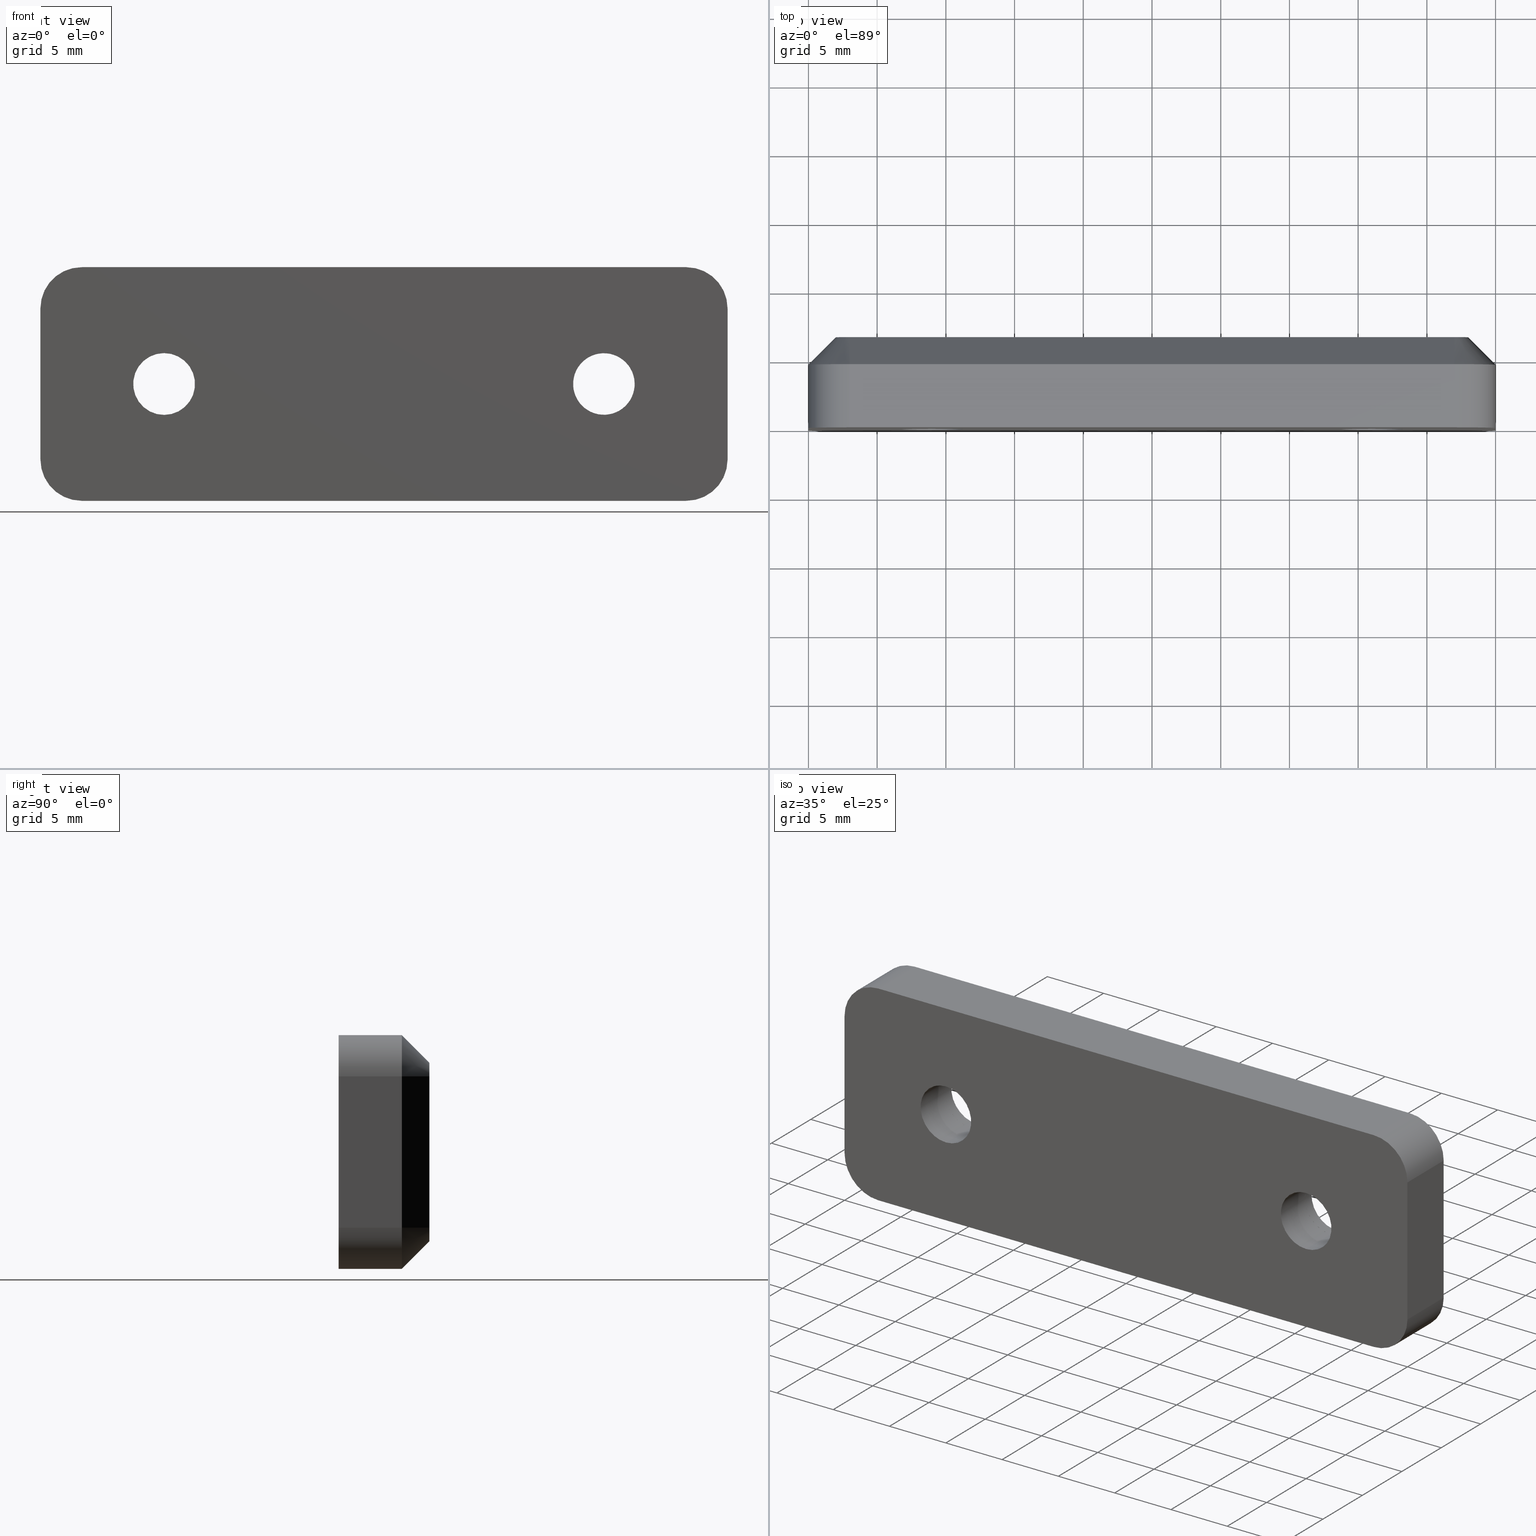
[diagram: canonical four-view strip — front | top / right | iso, engineering-drawing reading convention]
A machine part, canonical four-view strip (front | top / right | iso — engineering-drawing reading convention). The complete STEP part file that produces these views, byte-faithful:
ISO-10303-21;
HEADER;
/* Generated by software containing ST-Developer
 * from STEP Tools, Inc. (www.steptools.com) 
 */

FILE_DESCRIPTION(
/* description */ (''),
/* implementation_level */ '2;1');

FILE_NAME(
/* name */ '\\\\SYNOLOGYNAS\\web\\db2\\B-MSC32\\B-MSC32.stp',
/* time_stamp */ '2025-01-16T20:08:22+09:00',
/* author */ ('user'),
/* organization */ (''),
/* preprocessor_version */ 'ST-DEVELOPER v15.6',
/* originating_system */ 'Autodesk Inventor 2015',
/* authorisation */ '');

FILE_SCHEMA (('AUTOMOTIVE_DESIGN { 1 0 10303 214 3 1 1 }'));
ENDSEC;

DATA;
#10=MECHANICAL_DESIGN_GEOMETRIC_PRESENTATION_REPRESENTATION('',(#30,#31),
#779);
#11=ITEM_DEFINED_TRANSFORMATION($,$,#448,#503);
#12=ITEM_DEFINED_TRANSFORMATION($,$,#493,#504);
#13=ITEM_DEFINED_TRANSFORMATION($,$,#493,#505);
#14=(
REPRESENTATION_RELATIONSHIP($,$,#792,#794)
REPRESENTATION_RELATIONSHIP_WITH_TRANSFORMATION(#11)
SHAPE_REPRESENTATION_RELATIONSHIP()
);
#15=(
REPRESENTATION_RELATIONSHIP($,$,#793,#794)
REPRESENTATION_RELATIONSHIP_WITH_TRANSFORMATION(#12)
SHAPE_REPRESENTATION_RELATIONSHIP()
);
#16=(
REPRESENTATION_RELATIONSHIP($,$,#793,#794)
REPRESENTATION_RELATIONSHIP_WITH_TRANSFORMATION(#13)
SHAPE_REPRESENTATION_RELATIONSHIP()
);
#17=CONTEXT_DEPENDENT_SHAPE_REPRESENTATION(#14,#789);
#18=CONTEXT_DEPENDENT_SHAPE_REPRESENTATION(#15,#790);
#19=CONTEXT_DEPENDENT_SHAPE_REPRESENTATION(#16,#791);
#20=NEXT_ASSEMBLY_USAGE_OCCURRENCE('\X2\BAB8CCB4\X0\:1',$,$,#798,#796,$);
#21=NEXT_ASSEMBLY_USAGE_OCCURRENCE('\X2\C640C0E4\X0\:1',$,$,#798,#797,$);
#22=NEXT_ASSEMBLY_USAGE_OCCURRENCE('\X2\C640C0E4\X0\:2',$,$,#798,#797,$);
#23=DIMENSIONAL_EXPONENTS(0.,0.,0.,0.,0.,0.,0.);
#24=(
CONVERSION_BASED_UNIT('degree',#25)
NAMED_UNIT(#23)
PLANE_ANGLE_UNIT()
);
#25=PLANE_ANGLE_MEASURE_WITH_UNIT(PLANE_ANGLE_MEASURE(0.01745329252),#782);
#26=SHAPE_REPRESENTATION_RELATIONSHIP('SRR','None',#792,#28);
#27=SHAPE_REPRESENTATION_RELATIONSHIP('SRR','None',#793,#29);
#28=ADVANCED_BREP_SHAPE_REPRESENTATION($,(#32),#776);
#29=ADVANCED_BREP_SHAPE_REPRESENTATION($,(#33),#777);
#30=STYLED_ITEM('',(#811),#32);
#31=STYLED_ITEM('',(#812),#33);
#32=MANIFOLD_SOLID_BREP('\X2\C194B9ACB4DC\X0\1',#446);
#33=MANIFOLD_SOLID_BREP('\X2\C194B9ACB4DC\X0\1',#447);
#34=CONICAL_SURFACE('',#484,0.999999999999998,0.785398163397447);
#35=CONICAL_SURFACE('',#485,0.999999999999998,0.785398163397447);
#36=CONICAL_SURFACE('',#488,0.999999999999998,0.785398163397447);
#37=CONICAL_SURFACE('',#489,0.999999999999998,0.785398163397447);
#38=CYLINDRICAL_SURFACE('',#463,5.);
#39=CYLINDRICAL_SURFACE('',#465,5.);
#40=CYLINDRICAL_SURFACE('',#467,2.25);
#41=CYLINDRICAL_SURFACE('',#469,2.25);
#42=CYLINDRICAL_SURFACE('',#475,3.);
#43=CYLINDRICAL_SURFACE('',#477,3.);
#44=CYLINDRICAL_SURFACE('',#479,3.);
#45=CYLINDRICAL_SURFACE('',#481,3.);
#46=CYLINDRICAL_SURFACE('',#494,2.25);
#47=CYLINDRICAL_SURFACE('',#497,5.);
#48=FACE_BOUND('',#91,.T.);
#49=FACE_BOUND('',#92,.T.);
#50=FACE_BOUND('',#94,.T.);
#51=FACE_BOUND('',#95,.T.);
#52=FACE_BOUND('',#97,.T.);
#53=FACE_BOUND('',#99,.T.);
#54=FACE_BOUND('',#101,.T.);
#55=FACE_BOUND('',#103,.T.);
#56=FACE_BOUND('',#121,.T.);
#57=FACE_BOUND('',#123,.T.);
#58=FACE_BOUND('',#125,.T.);
#59=FACE_BOUND('',#127,.T.);
#60=FACE_BOUND('',#129,.T.);
#61=FACE_BOUND('',#131,.T.);
#62=FACE_OUTER_BOUND('',#90,.T.);
#63=FACE_OUTER_BOUND('',#93,.T.);
#64=FACE_OUTER_BOUND('',#96,.T.);
#65=FACE_OUTER_BOUND('',#98,.T.);
#66=FACE_OUTER_BOUND('',#100,.T.);
#67=FACE_OUTER_BOUND('',#102,.T.);
#68=FACE_OUTER_BOUND('',#104,.T.);
#69=FACE_OUTER_BOUND('',#105,.T.);
#70=FACE_OUTER_BOUND('',#106,.T.);
#71=FACE_OUTER_BOUND('',#107,.T.);
#72=FACE_OUTER_BOUND('',#108,.T.);
#73=FACE_OUTER_BOUND('',#109,.T.);
#74=FACE_OUTER_BOUND('',#110,.T.);
#75=FACE_OUTER_BOUND('',#111,.T.);
#76=FACE_OUTER_BOUND('',#112,.T.);
#77=FACE_OUTER_BOUND('',#113,.T.);
#78=FACE_OUTER_BOUND('',#114,.T.);
#79=FACE_OUTER_BOUND('',#115,.T.);
#80=FACE_OUTER_BOUND('',#116,.T.);
#81=FACE_OUTER_BOUND('',#117,.T.);
#82=FACE_OUTER_BOUND('',#118,.T.);
#83=FACE_OUTER_BOUND('',#119,.T.);
#84=FACE_OUTER_BOUND('',#120,.T.);
#85=FACE_OUTER_BOUND('',#122,.T.);
#86=FACE_OUTER_BOUND('',#124,.T.);
#87=FACE_OUTER_BOUND('',#126,.T.);
#88=FACE_OUTER_BOUND('',#128,.T.);
#89=FACE_OUTER_BOUND('',#130,.T.);
#90=EDGE_LOOP('',(#300,#301,#302,#303,#304,#305,#306,#307));
#91=EDGE_LOOP('',(#308));
#92=EDGE_LOOP('',(#309));
#93=EDGE_LOOP('',(#310,#311,#312,#313,#314,#315,#316,#317));
#94=EDGE_LOOP('',(#318));
#95=EDGE_LOOP('',(#319));
#96=EDGE_LOOP('',(#320));
#97=EDGE_LOOP('',(#321));
#98=EDGE_LOOP('',(#322));
#99=EDGE_LOOP('',(#323));
#100=EDGE_LOOP('',(#324));
#101=EDGE_LOOP('',(#325));
#102=EDGE_LOOP('',(#326));
#103=EDGE_LOOP('',(#327));
#104=EDGE_LOOP('',(#328,#329,#330,#331));
#105=EDGE_LOOP('',(#332,#333,#334,#335));
#106=EDGE_LOOP('',(#336,#337,#338,#339));
#107=EDGE_LOOP('',(#340,#341,#342,#343));
#108=EDGE_LOOP('',(#344,#345,#346,#347));
#109=EDGE_LOOP('',(#348,#349,#350,#351));
#110=EDGE_LOOP('',(#352,#353,#354,#355));
#111=EDGE_LOOP('',(#356,#357,#358,#359));
#112=EDGE_LOOP('',(#360,#361,#362,#363));
#113=EDGE_LOOP('',(#364,#365,#366,#367));
#114=EDGE_LOOP('',(#368,#369,#370,#371));
#115=EDGE_LOOP('',(#372,#373,#374,#375));
#116=EDGE_LOOP('',(#376,#377,#378,#379));
#117=EDGE_LOOP('',(#380,#381,#382,#383));
#118=EDGE_LOOP('',(#384,#385,#386,#387));
#119=EDGE_LOOP('',(#388,#389,#390,#391));
#120=EDGE_LOOP('',(#392));
#121=EDGE_LOOP('',(#393));
#122=EDGE_LOOP('',(#394));
#123=EDGE_LOOP('',(#395));
#124=EDGE_LOOP('',(#396));
#125=EDGE_LOOP('',(#397));
#126=EDGE_LOOP('',(#398));
#127=EDGE_LOOP('',(#399));
#128=EDGE_LOOP('',(#400));
#129=EDGE_LOOP('',(#401));
#130=EDGE_LOOP('',(#402));
#131=EDGE_LOOP('',(#403));
#132=CIRCLE('',#450,3.);
#133=CIRCLE('',#451,3.);
#134=CIRCLE('',#452,3.);
#135=CIRCLE('',#453,3.);
#136=CIRCLE('',#454,2.25);
#137=CIRCLE('',#455,2.25);
#138=CIRCLE('',#457,0.999999999999998);
#139=CIRCLE('',#458,0.999999999999998);
#140=CIRCLE('',#459,0.999999999999998);
#141=CIRCLE('',#460,0.999999999999998);
#142=CIRCLE('',#461,5.);
#143=CIRCLE('',#462,5.);
#144=CIRCLE('',#464,5.);
#145=CIRCLE('',#466,5.);
#146=CIRCLE('',#468,2.25);
#147=CIRCLE('',#470,2.25);
#148=CIRCLE('',#476,3.);
#149=CIRCLE('',#478,3.);
#150=CIRCLE('',#480,3.);
#151=CIRCLE('',#482,3.);
#152=CIRCLE('',#495,2.25);
#153=CIRCLE('',#496,2.25);
#154=CIRCLE('',#498,5.);
#155=CIRCLE('',#499,5.);
#156=LINE('',#654,#184);
#157=LINE('',#658,#185);
#158=LINE('',#662,#186);
#159=LINE('',#666,#187);
#160=LINE('',#677,#188);
#161=LINE('',#681,#189);
#162=LINE('',#685,#190);
#163=LINE('',#688,#191);
#164=LINE('',#707,#192);
#165=LINE('',#709,#193);
#166=LINE('',#710,#194);
#167=LINE('',#713,#195);
#168=LINE('',#715,#196);
#169=LINE('',#716,#197);
#170=LINE('',#719,#198);
#171=LINE('',#721,#199);
#172=LINE('',#722,#200);
#173=LINE('',#725,#201);
#174=LINE('',#727,#202);
#175=LINE('',#728,#203);
#176=LINE('',#738,#204);
#177=LINE('',#739,#205);
#178=LINE('',#741,#206);
#179=LINE('',#743,#207);
#180=LINE('',#745,#208);
#181=LINE('',#747,#209);
#182=LINE('',#749,#210);
#183=LINE('',#751,#211);
#184=VECTOR('',#510,44.);
#185=VECTOR('',#513,11.);
#186=VECTOR('',#516,44.);
#187=VECTOR('',#519,11.);
#188=VECTOR('',#530,44.);
#189=VECTOR('',#533,11.);
#190=VECTOR('',#536,44.);
#191=VECTOR('',#539,11.);
#192=VECTOR('',#562,4.59999999999999);
#193=VECTOR('',#563,11.);
#194=VECTOR('',#564,4.59999999999999);
#195=VECTOR('',#567,4.59999999999999);
#196=VECTOR('',#568,44.);
#197=VECTOR('',#569,4.59999999999999);
#198=VECTOR('',#572,4.59999999999999);
#199=VECTOR('',#573,11.);
#200=VECTOR('',#574,4.59999999999999);
#201=VECTOR('',#577,4.59999999999999);
#202=VECTOR('',#578,44.);
#203=VECTOR('',#579,4.59999999999999);
#204=VECTOR('',#598,2.8284271247462);
#205=VECTOR('',#599,2.8284271247462);
#206=VECTOR('',#602,2.8284271247462);
#207=VECTOR('',#605,2.8284271247462);
#208=VECTOR('',#608,2.8284271247462);
#209=VECTOR('',#611,2.8284271247462);
#210=VECTOR('',#614,2.8284271247462);
#211=VECTOR('',#617,2.8284271247462);
#212=VERTEX_POINT('',#652);
#213=VERTEX_POINT('',#653);
#214=VERTEX_POINT('',#655);
#215=VERTEX_POINT('',#657);
#216=VERTEX_POINT('',#659);
#217=VERTEX_POINT('',#661);
#218=VERTEX_POINT('',#663);
#219=VERTEX_POINT('',#665);
#220=VERTEX_POINT('',#668);
#221=VERTEX_POINT('',#670);
#222=VERTEX_POINT('',#673);
#223=VERTEX_POINT('',#674);
#224=VERTEX_POINT('',#676);
#225=VERTEX_POINT('',#678);
#226=VERTEX_POINT('',#680);
#227=VERTEX_POINT('',#682);
#228=VERTEX_POINT('',#684);
#229=VERTEX_POINT('',#686);
#230=VERTEX_POINT('',#689);
#231=VERTEX_POINT('',#691);
#232=VERTEX_POINT('',#694);
#233=VERTEX_POINT('',#697);
#234=VERTEX_POINT('',#700);
#235=VERTEX_POINT('',#703);
#236=VERTEX_POINT('',#706);
#237=VERTEX_POINT('',#708);
#238=VERTEX_POINT('',#712);
#239=VERTEX_POINT('',#714);
#240=VERTEX_POINT('',#718);
#241=VERTEX_POINT('',#720);
#242=VERTEX_POINT('',#724);
#243=VERTEX_POINT('',#726);
#244=VERTEX_POINT('',#757);
#245=VERTEX_POINT('',#759);
#246=VERTEX_POINT('',#762);
#247=VERTEX_POINT('',#764);
#248=EDGE_CURVE('',#212,#213,#156,.T.);
#249=EDGE_CURVE('',#212,#214,#132,.T.);
#250=EDGE_CURVE('',#215,#214,#157,.T.);
#251=EDGE_CURVE('',#215,#216,#133,.T.);
#252=EDGE_CURVE('',#217,#216,#158,.T.);
#253=EDGE_CURVE('',#217,#218,#134,.T.);
#254=EDGE_CURVE('',#219,#218,#159,.T.);
#255=EDGE_CURVE('',#219,#213,#135,.T.);
#256=EDGE_CURVE('',#220,#220,#136,.T.);
#257=EDGE_CURVE('',#221,#221,#137,.T.);
#258=EDGE_CURVE('',#222,#223,#138,.T.);
#259=EDGE_CURVE('',#223,#224,#160,.T.);
#260=EDGE_CURVE('',#224,#225,#139,.T.);
#261=EDGE_CURVE('',#225,#226,#161,.T.);
#262=EDGE_CURVE('',#226,#227,#140,.T.);
#263=EDGE_CURVE('',#227,#228,#162,.T.);
#264=EDGE_CURVE('',#228,#229,#141,.T.);
#265=EDGE_CURVE('',#229,#222,#163,.T.);
#266=EDGE_CURVE('',#230,#230,#142,.T.);
#267=EDGE_CURVE('',#231,#231,#143,.T.);
#268=EDGE_CURVE('',#232,#232,#144,.T.);
#269=EDGE_CURVE('',#233,#233,#145,.T.);
#270=EDGE_CURVE('',#234,#234,#146,.T.);
#271=EDGE_CURVE('',#235,#235,#147,.T.);
#272=EDGE_CURVE('',#218,#236,#164,.T.);
#273=EDGE_CURVE('',#236,#237,#165,.T.);
#274=EDGE_CURVE('',#237,#219,#166,.T.);
#275=EDGE_CURVE('',#216,#238,#167,.T.);
#276=EDGE_CURVE('',#238,#239,#168,.T.);
#277=EDGE_CURVE('',#239,#217,#169,.T.);
#278=EDGE_CURVE('',#214,#240,#170,.T.);
#279=EDGE_CURVE('',#240,#241,#171,.T.);
#280=EDGE_CURVE('',#241,#215,#172,.T.);
#281=EDGE_CURVE('',#213,#242,#173,.T.);
#282=EDGE_CURVE('',#242,#243,#174,.T.);
#283=EDGE_CURVE('',#243,#212,#175,.T.);
#284=EDGE_CURVE('',#243,#240,#148,.T.);
#285=EDGE_CURVE('',#241,#238,#149,.T.);
#286=EDGE_CURVE('',#239,#236,#150,.T.);
#287=EDGE_CURVE('',#237,#242,#151,.T.);
#288=EDGE_CURVE('',#243,#227,#176,.T.);
#289=EDGE_CURVE('',#228,#242,#177,.T.);
#290=EDGE_CURVE('',#229,#237,#178,.T.);
#291=EDGE_CURVE('',#240,#226,#179,.T.);
#292=EDGE_CURVE('',#222,#236,#180,.T.);
#293=EDGE_CURVE('',#241,#225,#181,.T.);
#294=EDGE_CURVE('',#223,#239,#182,.T.);
#295=EDGE_CURVE('',#238,#224,#183,.T.);
#296=EDGE_CURVE('',#244,#244,#152,.T.);
#297=EDGE_CURVE('',#245,#245,#153,.T.);
#298=EDGE_CURVE('',#246,#246,#154,.T.);
#299=EDGE_CURVE('',#247,#247,#155,.T.);
#300=ORIENTED_EDGE('',*,*,#248,.F.);
#301=ORIENTED_EDGE('',*,*,#249,.T.);
#302=ORIENTED_EDGE('',*,*,#250,.F.);
#303=ORIENTED_EDGE('',*,*,#251,.T.);
#304=ORIENTED_EDGE('',*,*,#252,.F.);
#305=ORIENTED_EDGE('',*,*,#253,.T.);
#306=ORIENTED_EDGE('',*,*,#254,.F.);
#307=ORIENTED_EDGE('',*,*,#255,.T.);
#308=ORIENTED_EDGE('',*,*,#256,.T.);
#309=ORIENTED_EDGE('',*,*,#257,.T.);
#310=ORIENTED_EDGE('',*,*,#258,.T.);
#311=ORIENTED_EDGE('',*,*,#259,.T.);
#312=ORIENTED_EDGE('',*,*,#260,.T.);
#313=ORIENTED_EDGE('',*,*,#261,.T.);
#314=ORIENTED_EDGE('',*,*,#262,.T.);
#315=ORIENTED_EDGE('',*,*,#263,.T.);
#316=ORIENTED_EDGE('',*,*,#264,.T.);
#317=ORIENTED_EDGE('',*,*,#265,.T.);
#318=ORIENTED_EDGE('',*,*,#266,.F.);
#319=ORIENTED_EDGE('',*,*,#267,.F.);
#320=ORIENTED_EDGE('',*,*,#267,.T.);
#321=ORIENTED_EDGE('',*,*,#268,.F.);
#322=ORIENTED_EDGE('',*,*,#266,.T.);
#323=ORIENTED_EDGE('',*,*,#269,.F.);
#324=ORIENTED_EDGE('',*,*,#257,.F.);
#325=ORIENTED_EDGE('',*,*,#270,.T.);
#326=ORIENTED_EDGE('',*,*,#256,.F.);
#327=ORIENTED_EDGE('',*,*,#271,.T.);
#328=ORIENTED_EDGE('',*,*,#272,.T.);
#329=ORIENTED_EDGE('',*,*,#273,.T.);
#330=ORIENTED_EDGE('',*,*,#274,.T.);
#331=ORIENTED_EDGE('',*,*,#254,.T.);
#332=ORIENTED_EDGE('',*,*,#275,.T.);
#333=ORIENTED_EDGE('',*,*,#276,.T.);
#334=ORIENTED_EDGE('',*,*,#277,.T.);
#335=ORIENTED_EDGE('',*,*,#252,.T.);
#336=ORIENTED_EDGE('',*,*,#278,.T.);
#337=ORIENTED_EDGE('',*,*,#279,.T.);
#338=ORIENTED_EDGE('',*,*,#280,.T.);
#339=ORIENTED_EDGE('',*,*,#250,.T.);
#340=ORIENTED_EDGE('',*,*,#281,.T.);
#341=ORIENTED_EDGE('',*,*,#282,.T.);
#342=ORIENTED_EDGE('',*,*,#283,.T.);
#343=ORIENTED_EDGE('',*,*,#248,.T.);
#344=ORIENTED_EDGE('',*,*,#283,.F.);
#345=ORIENTED_EDGE('',*,*,#284,.T.);
#346=ORIENTED_EDGE('',*,*,#278,.F.);
#347=ORIENTED_EDGE('',*,*,#249,.F.);
#348=ORIENTED_EDGE('',*,*,#280,.F.);
#349=ORIENTED_EDGE('',*,*,#285,.T.);
#350=ORIENTED_EDGE('',*,*,#275,.F.);
#351=ORIENTED_EDGE('',*,*,#251,.F.);
#352=ORIENTED_EDGE('',*,*,#277,.F.);
#353=ORIENTED_EDGE('',*,*,#286,.T.);
#354=ORIENTED_EDGE('',*,*,#272,.F.);
#355=ORIENTED_EDGE('',*,*,#253,.F.);
#356=ORIENTED_EDGE('',*,*,#274,.F.);
#357=ORIENTED_EDGE('',*,*,#287,.T.);
#358=ORIENTED_EDGE('',*,*,#281,.F.);
#359=ORIENTED_EDGE('',*,*,#255,.F.);
#360=ORIENTED_EDGE('',*,*,#288,.F.);
#361=ORIENTED_EDGE('',*,*,#282,.F.);
#362=ORIENTED_EDGE('',*,*,#289,.F.);
#363=ORIENTED_EDGE('',*,*,#263,.F.);
#364=ORIENTED_EDGE('',*,*,#289,.T.);
#365=ORIENTED_EDGE('',*,*,#287,.F.);
#366=ORIENTED_EDGE('',*,*,#290,.F.);
#367=ORIENTED_EDGE('',*,*,#264,.F.);
#368=ORIENTED_EDGE('',*,*,#288,.T.);
#369=ORIENTED_EDGE('',*,*,#262,.F.);
#370=ORIENTED_EDGE('',*,*,#291,.F.);
#371=ORIENTED_EDGE('',*,*,#284,.F.);
#372=ORIENTED_EDGE('',*,*,#290,.T.);
#373=ORIENTED_EDGE('',*,*,#273,.F.);
#374=ORIENTED_EDGE('',*,*,#292,.F.);
#375=ORIENTED_EDGE('',*,*,#265,.F.);
#376=ORIENTED_EDGE('',*,*,#291,.T.);
#377=ORIENTED_EDGE('',*,*,#261,.F.);
#378=ORIENTED_EDGE('',*,*,#293,.F.);
#379=ORIENTED_EDGE('',*,*,#279,.F.);
#380=ORIENTED_EDGE('',*,*,#292,.T.);
#381=ORIENTED_EDGE('',*,*,#286,.F.);
#382=ORIENTED_EDGE('',*,*,#294,.F.);
#383=ORIENTED_EDGE('',*,*,#258,.F.);
#384=ORIENTED_EDGE('',*,*,#293,.T.);
#385=ORIENTED_EDGE('',*,*,#260,.F.);
#386=ORIENTED_EDGE('',*,*,#295,.F.);
#387=ORIENTED_EDGE('',*,*,#285,.F.);
#388=ORIENTED_EDGE('',*,*,#294,.T.);
#389=ORIENTED_EDGE('',*,*,#276,.F.);
#390=ORIENTED_EDGE('',*,*,#295,.T.);
#391=ORIENTED_EDGE('',*,*,#259,.F.);
#392=ORIENTED_EDGE('',*,*,#269,.T.);
#393=ORIENTED_EDGE('',*,*,#270,.F.);
#394=ORIENTED_EDGE('',*,*,#268,.T.);
#395=ORIENTED_EDGE('',*,*,#271,.F.);
#396=ORIENTED_EDGE('',*,*,#296,.F.);
#397=ORIENTED_EDGE('',*,*,#297,.T.);
#398=ORIENTED_EDGE('',*,*,#298,.F.);
#399=ORIENTED_EDGE('',*,*,#299,.T.);
#400=ORIENTED_EDGE('',*,*,#298,.T.);
#401=ORIENTED_EDGE('',*,*,#297,.F.);
#402=ORIENTED_EDGE('',*,*,#299,.F.);
#403=ORIENTED_EDGE('',*,*,#296,.T.);
#404=PLANE('',#449);
#405=PLANE('',#456);
#406=PLANE('',#471);
#407=PLANE('',#472);
#408=PLANE('',#473);
#409=PLANE('',#474);
#410=PLANE('',#483);
#411=PLANE('',#486);
#412=PLANE('',#487);
#413=PLANE('',#490);
#414=PLANE('',#491);
#415=PLANE('',#492);
#416=PLANE('',#500);
#417=PLANE('',#501);
#418=ADVANCED_FACE('',(#62,#48,#49),#404,.T.);
#419=ADVANCED_FACE('',(#63,#50,#51),#405,.T.);
#420=ADVANCED_FACE('',(#64,#52),#38,.F.);
#421=ADVANCED_FACE('',(#65,#53),#39,.F.);
#422=ADVANCED_FACE('',(#66,#54),#40,.F.);
#423=ADVANCED_FACE('',(#67,#55),#41,.F.);
#424=ADVANCED_FACE('',(#68),#406,.F.);
#425=ADVANCED_FACE('',(#69),#407,.F.);
#426=ADVANCED_FACE('',(#70),#408,.F.);
#427=ADVANCED_FACE('',(#71),#409,.F.);
#428=ADVANCED_FACE('',(#72),#42,.T.);
#429=ADVANCED_FACE('',(#73),#43,.T.);
#430=ADVANCED_FACE('',(#74),#44,.T.);
#431=ADVANCED_FACE('',(#75),#45,.T.);
#432=ADVANCED_FACE('',(#76),#410,.T.);
#433=ADVANCED_FACE('',(#77),#34,.T.);
#434=ADVANCED_FACE('',(#78),#35,.T.);
#435=ADVANCED_FACE('',(#79),#411,.T.);
#436=ADVANCED_FACE('',(#80),#412,.T.);
#437=ADVANCED_FACE('',(#81),#36,.T.);
#438=ADVANCED_FACE('',(#82),#37,.T.);
#439=ADVANCED_FACE('',(#83),#413,.T.);
#440=ADVANCED_FACE('',(#84,#56),#414,.T.);
#441=ADVANCED_FACE('',(#85,#57),#415,.T.);
#442=ADVANCED_FACE('',(#86,#58),#46,.F.);
#443=ADVANCED_FACE('',(#87,#59),#47,.T.);
#444=ADVANCED_FACE('',(#88,#60),#416,.T.);
#445=ADVANCED_FACE('',(#89,#61),#417,.F.);
#446=CLOSED_SHELL('',(#418,#419,#420,#421,#422,#423,#424,#425,#426,#427,
#428,#429,#430,#431,#432,#433,#434,#435,#436,#437,#438,#439,#440,#441));
#447=CLOSED_SHELL('',(#442,#443,#444,#445));
#448=AXIS2_PLACEMENT_3D('placement',#650,#506,#507);
#449=AXIS2_PLACEMENT_3D('',#651,#508,#509);
#450=AXIS2_PLACEMENT_3D('',#656,#511,#512);
#451=AXIS2_PLACEMENT_3D('',#660,#514,#515);
#452=AXIS2_PLACEMENT_3D('',#664,#517,#518);
#453=AXIS2_PLACEMENT_3D('',#667,#520,#521);
#454=AXIS2_PLACEMENT_3D('',#669,#522,#523);
#455=AXIS2_PLACEMENT_3D('',#671,#524,#525);
#456=AXIS2_PLACEMENT_3D('',#672,#526,#527);
#457=AXIS2_PLACEMENT_3D('',#675,#528,#529);
#458=AXIS2_PLACEMENT_3D('',#679,#531,#532);
#459=AXIS2_PLACEMENT_3D('',#683,#534,#535);
#460=AXIS2_PLACEMENT_3D('',#687,#537,#538);
#461=AXIS2_PLACEMENT_3D('',#690,#540,#541);
#462=AXIS2_PLACEMENT_3D('',#692,#542,#543);
#463=AXIS2_PLACEMENT_3D('',#693,#544,#545);
#464=AXIS2_PLACEMENT_3D('',#695,#546,#547);
#465=AXIS2_PLACEMENT_3D('',#696,#548,#549);
#466=AXIS2_PLACEMENT_3D('',#698,#550,#551);
#467=AXIS2_PLACEMENT_3D('',#699,#552,#553);
#468=AXIS2_PLACEMENT_3D('',#701,#554,#555);
#469=AXIS2_PLACEMENT_3D('',#702,#556,#557);
#470=AXIS2_PLACEMENT_3D('',#704,#558,#559);
#471=AXIS2_PLACEMENT_3D('',#705,#560,#561);
#472=AXIS2_PLACEMENT_3D('',#711,#565,#566);
#473=AXIS2_PLACEMENT_3D('',#717,#570,#571);
#474=AXIS2_PLACEMENT_3D('',#723,#575,#576);
#475=AXIS2_PLACEMENT_3D('',#729,#580,#581);
#476=AXIS2_PLACEMENT_3D('',#730,#582,#583);
#477=AXIS2_PLACEMENT_3D('',#731,#584,#585);
#478=AXIS2_PLACEMENT_3D('',#732,#586,#587);
#479=AXIS2_PLACEMENT_3D('',#733,#588,#589);
#480=AXIS2_PLACEMENT_3D('',#734,#590,#591);
#481=AXIS2_PLACEMENT_3D('',#735,#592,#593);
#482=AXIS2_PLACEMENT_3D('',#736,#594,#595);
#483=AXIS2_PLACEMENT_3D('',#737,#596,#597);
#484=AXIS2_PLACEMENT_3D('',#740,#600,#601);
#485=AXIS2_PLACEMENT_3D('',#742,#603,#604);
#486=AXIS2_PLACEMENT_3D('',#744,#606,#607);
#487=AXIS2_PLACEMENT_3D('',#746,#609,#610);
#488=AXIS2_PLACEMENT_3D('',#748,#612,#613);
#489=AXIS2_PLACEMENT_3D('',#750,#615,#616);
#490=AXIS2_PLACEMENT_3D('',#752,#618,#619);
#491=AXIS2_PLACEMENT_3D('',#753,#620,#621);
#492=AXIS2_PLACEMENT_3D('',#754,#622,#623);
#493=AXIS2_PLACEMENT_3D('placement',#755,#624,#625);
#494=AXIS2_PLACEMENT_3D('',#756,#626,#627);
#495=AXIS2_PLACEMENT_3D('',#758,#628,#629);
#496=AXIS2_PLACEMENT_3D('',#760,#630,#631);
#497=AXIS2_PLACEMENT_3D('',#761,#632,#633);
#498=AXIS2_PLACEMENT_3D('',#763,#634,#635);
#499=AXIS2_PLACEMENT_3D('',#765,#636,#637);
#500=AXIS2_PLACEMENT_3D('',#766,#638,#639);
#501=AXIS2_PLACEMENT_3D('',#767,#640,#641);
#502=AXIS2_PLACEMENT_3D('placement',#768,#642,#643);
#503=AXIS2_PLACEMENT_3D('',#769,#644,#645);
#504=AXIS2_PLACEMENT_3D('',#770,#646,#647);
#505=AXIS2_PLACEMENT_3D('',#771,#648,#649);
#506=DIRECTION('axis',(0.,0.,1.));
#507=DIRECTION('refdir',(1.,0.,0.));
#508=DIRECTION('center_axis',(0.,-1.,0.));
#509=DIRECTION('ref_axis',(0.,0.,-1.));
#510=DIRECTION('',(1.,0.,0.));
#511=DIRECTION('center_axis',(0.,-1.,0.));
#512=DIRECTION('ref_axis',(0.,0.,1.));
#513=DIRECTION('',(2.04085114820801E-16,0.,1.));
#514=DIRECTION('center_axis',(0.,-1.,0.));
#515=DIRECTION('ref_axis',(1.15648231731787E-15,0.,1.));
#516=DIRECTION('',(-1.,0.,0.));
#517=DIRECTION('center_axis',(0.,-1.,0.));
#518=DIRECTION('ref_axis',(-1.15648231731787E-15,0.,1.));
#519=DIRECTION('',(-4.08170229641602E-16,0.,-1.));
#520=DIRECTION('center_axis',(0.,-1.,0.));
#521=DIRECTION('ref_axis',(-1.15648231731787E-15,0.,1.));
#522=DIRECTION('center_axis',(0.,1.,0.));
#523=DIRECTION('ref_axis',(0.,0.,1.));
#524=DIRECTION('center_axis',(0.,1.,0.));
#525=DIRECTION('ref_axis',(0.,0.,1.));
#526=DIRECTION('center_axis',(0.,1.,0.));
#527=DIRECTION('ref_axis',(0.,0.,1.));
#528=DIRECTION('center_axis',(0.,1.,0.));
#529=DIRECTION('ref_axis',(0.,0.,1.));
#530=DIRECTION('',(-1.,0.,0.));
#531=DIRECTION('center_axis',(0.,1.,0.));
#532=DIRECTION('ref_axis',(0.,0.,1.));
#533=DIRECTION('',(2.04085114820801E-16,0.,1.));
#534=DIRECTION('center_axis',(0.,1.,0.));
#535=DIRECTION('ref_axis',(0.,0.,1.));
#536=DIRECTION('',(1.,0.,0.));
#537=DIRECTION('center_axis',(0.,1.,0.));
#538=DIRECTION('ref_axis',(0.,0.,1.));
#539=DIRECTION('',(-4.08170229641602E-16,0.,-1.));
#540=DIRECTION('center_axis',(0.,1.,0.));
#541=DIRECTION('ref_axis',(0.,0.,1.));
#542=DIRECTION('center_axis',(0.,1.,0.));
#543=DIRECTION('ref_axis',(0.,0.,1.));
#544=DIRECTION('center_axis',(0.,1.,0.));
#545=DIRECTION('ref_axis',(0.,0.,1.));
#546=DIRECTION('center_axis',(0.,1.,0.));
#547=DIRECTION('ref_axis',(0.,0.,1.));
#548=DIRECTION('center_axis',(0.,1.,0.));
#549=DIRECTION('ref_axis',(0.,0.,1.));
#550=DIRECTION('center_axis',(0.,1.,0.));
#551=DIRECTION('ref_axis',(0.,0.,1.));
#552=DIRECTION('center_axis',(0.,-1.,0.));
#553=DIRECTION('ref_axis',(0.,0.,-1.));
#554=DIRECTION('center_axis',(0.,1.,0.));
#555=DIRECTION('ref_axis',(0.,0.,1.));
#556=DIRECTION('center_axis',(0.,-1.,0.));
#557=DIRECTION('ref_axis',(0.,0.,-1.));
#558=DIRECTION('center_axis',(0.,1.,0.));
#559=DIRECTION('ref_axis',(0.,0.,1.));
#560=DIRECTION('center_axis',(-1.,0.,4.08170229641602E-16));
#561=DIRECTION('ref_axis',(0.,0.,1.));
#562=DIRECTION('',(0.,1.,0.));
#563=DIRECTION('',(4.08170229641602E-16,0.,1.));
#564=DIRECTION('',(0.,-1.,0.));
#565=DIRECTION('center_axis',(0.,0.,1.));
#566=DIRECTION('ref_axis',(1.,0.,0.));
#567=DIRECTION('',(0.,1.,0.));
#568=DIRECTION('',(1.,0.,0.));
#569=DIRECTION('',(0.,-1.,0.));
#570=DIRECTION('center_axis',(1.,0.,-2.04085114820801E-16));
#571=DIRECTION('ref_axis',(0.,0.,-1.));
#572=DIRECTION('',(0.,1.,0.));
#573=DIRECTION('',(-2.04085114820801E-16,0.,-1.));
#574=DIRECTION('',(0.,-1.,0.));
#575=DIRECTION('center_axis',(0.,0.,-1.));
#576=DIRECTION('ref_axis',(-1.,0.,0.));
#577=DIRECTION('',(0.,1.,0.));
#578=DIRECTION('',(-1.,0.,0.));
#579=DIRECTION('',(0.,-1.,0.));
#580=DIRECTION('center_axis',(0.,-1.,0.));
#581=DIRECTION('ref_axis',(0.,0.,-1.));
#582=DIRECTION('center_axis',(0.,-1.,0.));
#583=DIRECTION('ref_axis',(0.,0.,1.));
#584=DIRECTION('center_axis',(0.,-1.,0.));
#585=DIRECTION('ref_axis',(0.,0.,-1.));
#586=DIRECTION('center_axis',(0.,-1.,0.));
#587=DIRECTION('ref_axis',(1.15648231731787E-15,0.,1.));
#588=DIRECTION('center_axis',(0.,-1.,0.));
#589=DIRECTION('ref_axis',(0.,0.,-1.));
#590=DIRECTION('center_axis',(0.,-1.,0.));
#591=DIRECTION('ref_axis',(-1.15648231731787E-15,0.,1.));
#592=DIRECTION('center_axis',(0.,-1.,0.));
#593=DIRECTION('ref_axis',(0.,0.,-1.));
#594=DIRECTION('center_axis',(0.,-1.,0.));
#595=DIRECTION('ref_axis',(-1.15648231731787E-15,0.,1.));
#596=DIRECTION('center_axis',(0.,0.707106781186546,0.707106781186549));
#597=DIRECTION('ref_axis',(-1.,0.,0.));
#598=DIRECTION('',(0.,0.707106781186549,-0.707106781186546));
#599=DIRECTION('',(0.,-0.707106781186549,0.707106781186546));
#600=DIRECTION('center_axis',(0.,-1.,0.));
#601=DIRECTION('ref_axis',(0.,0.,-1.));
#602=DIRECTION('',(0.707106781186546,-0.707106781186549,-3.06658683336674E-16));
#603=DIRECTION('center_axis',(0.,-1.,0.));
#604=DIRECTION('ref_axis',(0.,0.,-1.));
#605=DIRECTION('',(0.707106781186546,0.707106781186549,0.));
#606=DIRECTION('center_axis',(0.707106781186549,0.707106781186546,-2.88619937258047E-16));
#607=DIRECTION('ref_axis',(0.,0.,1.));
#608=DIRECTION('',(0.707106781186546,-0.707106781186549,-3.06658683336674E-16));
#609=DIRECTION('center_axis',(-0.707106781186549,0.707106781186546,1.44309968629024E-16));
#610=DIRECTION('ref_axis',(0.,0.,-1.));
#611=DIRECTION('',(0.707106781186546,0.707106781186549,-3.06658683336674E-16));
#612=DIRECTION('center_axis',(0.,-1.,0.));
#613=DIRECTION('ref_axis',(0.,0.,-1.));
#614=DIRECTION('',(0.,-0.707106781186549,-0.707106781186546));
#615=DIRECTION('center_axis',(0.,-1.,0.));
#616=DIRECTION('ref_axis',(0.,0.,-1.));
#617=DIRECTION('',(0.,0.707106781186549,0.707106781186546));
#618=DIRECTION('center_axis',(0.,0.707106781186546,-0.707106781186549));
#619=DIRECTION('ref_axis',(1.,0.,0.));
#620=DIRECTION('center_axis',(0.,1.,0.));
#621=DIRECTION('ref_axis',(0.,0.,1.));
#622=DIRECTION('center_axis',(0.,1.,0.));
#623=DIRECTION('ref_axis',(0.,0.,1.));
#624=DIRECTION('axis',(0.,0.,1.));
#625=DIRECTION('refdir',(1.,0.,0.));
#626=DIRECTION('center_axis',(0.,-1.,0.));
#627=DIRECTION('ref_axis',(0.,0.,-1.));
#628=DIRECTION('center_axis',(0.,1.,0.));
#629=DIRECTION('ref_axis',(0.,0.,1.));
#630=DIRECTION('center_axis',(0.,1.,0.));
#631=DIRECTION('ref_axis',(0.,0.,1.));
#632=DIRECTION('center_axis',(0.,-1.,0.));
#633=DIRECTION('ref_axis',(0.,0.,-1.));
#634=DIRECTION('center_axis',(0.,1.,0.));
#635=DIRECTION('ref_axis',(0.,0.,1.));
#636=DIRECTION('center_axis',(0.,1.,0.));
#637=DIRECTION('ref_axis',(0.,0.,1.));
#638=DIRECTION('center_axis',(0.,1.,0.));
#639=DIRECTION('ref_axis',(0.,0.,1.));
#640=DIRECTION('center_axis',(0.,1.,0.));
#641=DIRECTION('ref_axis',(0.,0.,1.));
#642=DIRECTION('axis',(0.,0.,1.));
#643=DIRECTION('refdir',(1.,0.,0.));
#644=DIRECTION('',(0.,0.,-1.));
#645=DIRECTION('',(-1.,0.,0.));
#646=DIRECTION('',(0.930312532669425,6.98394883301112E-17,0.366767762430397));
#647=DIRECTION('',(0.366767762430397,1.69417404743889E-17,-0.930312532669425));
#648=DIRECTION('',(0.962225489159744,8.28524561811291E-19,-0.272253756652303));
#649=DIRECTION('',(-0.272253756652303,-5.41195523679861E-19,-0.962225489159744));
#650=CARTESIAN_POINT('',(0.,0.,0.));
#651=CARTESIAN_POINT('Origin',(5.74236559691303,0.,-2.50182767338622));
#652=CARTESIAN_POINT('',(-22.,0.,8.5));
#653=CARTESIAN_POINT('',(22.,0.,8.5));
#654=CARTESIAN_POINT('',(-25.,0.,8.5));
#655=CARTESIAN_POINT('',(-25.,0.,5.5));
#656=CARTESIAN_POINT('Origin',(-22.,0.,5.5));
#657=CARTESIAN_POINT('',(-25.,0.,-5.5));
#658=CARTESIAN_POINT('',(-25.,0.,-8.5));
#659=CARTESIAN_POINT('',(-22.,0.,-8.5));
#660=CARTESIAN_POINT('Origin',(-22.,0.,-5.5));
#661=CARTESIAN_POINT('',(22.,0.,-8.5));
#662=CARTESIAN_POINT('',(-25.,0.,-8.5));
#663=CARTESIAN_POINT('',(25.,0.,-5.5));
#664=CARTESIAN_POINT('Origin',(22.,0.,-5.5));
#665=CARTESIAN_POINT('',(25.,0.,5.5));
#666=CARTESIAN_POINT('',(25.,0.,-8.5));
#667=CARTESIAN_POINT('Origin',(22.,0.,5.5));
#668=CARTESIAN_POINT('',(-16.,0.,2.25));
#669=CARTESIAN_POINT('Origin',(-16.,0.,0.));
#670=CARTESIAN_POINT('',(16.,0.,2.25));
#671=CARTESIAN_POINT('Origin',(16.,0.,-3.91886975727153E-15));
#672=CARTESIAN_POINT('Origin',(0.,6.6,0.));
#673=CARTESIAN_POINT('',(23.,6.6,-5.5));
#674=CARTESIAN_POINT('',(22.,6.6,-6.5));
#675=CARTESIAN_POINT('Origin',(22.,6.6,-5.5));
#676=CARTESIAN_POINT('',(-22.,6.6,-6.5));
#677=CARTESIAN_POINT('',(-22.,6.6,-6.5));
#678=CARTESIAN_POINT('',(-23.,6.6,-5.5));
#679=CARTESIAN_POINT('Origin',(-22.,6.6,-5.5));
#680=CARTESIAN_POINT('',(-23.,6.6,5.5));
#681=CARTESIAN_POINT('',(-23.,6.6,5.5));
#682=CARTESIAN_POINT('',(-22.,6.6,6.5));
#683=CARTESIAN_POINT('Origin',(-22.,6.6,5.5));
#684=CARTESIAN_POINT('',(22.,6.6,6.5));
#685=CARTESIAN_POINT('',(22.,6.6,6.5));
#686=CARTESIAN_POINT('',(23.,6.6,5.5));
#687=CARTESIAN_POINT('Origin',(22.,6.6,5.5));
#688=CARTESIAN_POINT('',(23.,6.6,-5.5));
#689=CARTESIAN_POINT('',(16.,6.6,-5.));
#690=CARTESIAN_POINT('Origin',(16.,6.6,-3.91886975727153E-15));
#691=CARTESIAN_POINT('',(-16.,6.6,-5.));
#692=CARTESIAN_POINT('Origin',(-16.,6.6,0.));
#693=CARTESIAN_POINT('Origin',(-16.,3.1,0.));
#694=CARTESIAN_POINT('',(-16.,3.1,-5.));
#695=CARTESIAN_POINT('Origin',(-16.,3.1,0.));
#696=CARTESIAN_POINT('Origin',(16.,3.1,-3.91886975727153E-15));
#697=CARTESIAN_POINT('',(16.,3.1,-5.));
#698=CARTESIAN_POINT('Origin',(16.,3.1,-3.91886975727153E-15));
#699=CARTESIAN_POINT('Origin',(16.,6.6,-3.91886975727153E-15));
#700=CARTESIAN_POINT('',(16.,3.1,2.25));
#701=CARTESIAN_POINT('Origin',(16.,3.1,-3.91886975727153E-15));
#702=CARTESIAN_POINT('Origin',(-16.,6.6,0.));
#703=CARTESIAN_POINT('',(-16.,3.1,2.25));
#704=CARTESIAN_POINT('Origin',(-16.,3.1,0.));
#705=CARTESIAN_POINT('Origin',(25.,6.6,-8.5));
#706=CARTESIAN_POINT('',(25.,4.59999999999999,-5.5));
#707=CARTESIAN_POINT('',(25.,6.6,-5.5));
#708=CARTESIAN_POINT('',(25.,4.59999999999999,5.5));
#709=CARTESIAN_POINT('',(25.,4.59999999999999,5.5));
#710=CARTESIAN_POINT('',(25.,6.6,5.5));
#711=CARTESIAN_POINT('Origin',(-25.,6.6,-8.5));
#712=CARTESIAN_POINT('',(-22.,4.59999999999999,-8.5));
#713=CARTESIAN_POINT('',(-22.,6.6,-8.5));
#714=CARTESIAN_POINT('',(22.,4.59999999999999,-8.5));
#715=CARTESIAN_POINT('',(22.,4.59999999999999,-8.5));
#716=CARTESIAN_POINT('',(22.,6.6,-8.5));
#717=CARTESIAN_POINT('Origin',(-25.,6.6,-8.5));
#718=CARTESIAN_POINT('',(-25.,4.59999999999999,5.5));
#719=CARTESIAN_POINT('',(-25.,6.6,5.5));
#720=CARTESIAN_POINT('',(-25.,4.59999999999999,-5.5));
#721=CARTESIAN_POINT('',(-25.,4.59999999999999,-5.5));
#722=CARTESIAN_POINT('',(-25.,6.6,-5.5));
#723=CARTESIAN_POINT('Origin',(-25.,6.6,8.5));
#724=CARTESIAN_POINT('',(22.,4.59999999999999,8.5));
#725=CARTESIAN_POINT('',(22.,6.6,8.5));
#726=CARTESIAN_POINT('',(-22.,4.59999999999999,8.5));
#727=CARTESIAN_POINT('',(-22.,4.59999999999999,8.5));
#728=CARTESIAN_POINT('',(-22.,6.6,8.5));
#729=CARTESIAN_POINT('Origin',(-22.,6.6,5.5));
#730=CARTESIAN_POINT('Origin',(-22.,4.59999999999999,5.5));
#731=CARTESIAN_POINT('Origin',(-22.,6.6,-5.5));
#732=CARTESIAN_POINT('Origin',(-22.,4.59999999999999,-5.5));
#733=CARTESIAN_POINT('Origin',(22.,6.6,-5.5));
#734=CARTESIAN_POINT('Origin',(22.,4.59999999999999,-5.5));
#735=CARTESIAN_POINT('Origin',(22.,6.6,5.5));
#736=CARTESIAN_POINT('Origin',(22.,4.59999999999999,5.5));
#737=CARTESIAN_POINT('Origin',(0.,6.6,6.5));
#738=CARTESIAN_POINT('',(-22.,4.59999999999999,8.5));
#739=CARTESIAN_POINT('',(22.,6.6,6.5));
#740=CARTESIAN_POINT('Origin',(22.,6.6,5.5));
#741=CARTESIAN_POINT('',(23.,6.6,5.5));
#742=CARTESIAN_POINT('Origin',(-22.,6.6,5.5));
#743=CARTESIAN_POINT('',(-25.,4.59999999999999,5.5));
#744=CARTESIAN_POINT('Origin',(23.,6.6,-9.38791528175684E-15));
#745=CARTESIAN_POINT('',(23.,6.6,-5.5));
#746=CARTESIAN_POINT('Origin',(-23.,6.6,4.69395764087842E-15));
#747=CARTESIAN_POINT('',(-25.,4.59999999999999,-5.5));
#748=CARTESIAN_POINT('Origin',(22.,6.6,-5.5));
#749=CARTESIAN_POINT('',(22.,6.6,-6.5));
#750=CARTESIAN_POINT('Origin',(-22.,6.6,-5.5));
#751=CARTESIAN_POINT('',(-22.,4.59999999999999,-8.5));
#752=CARTESIAN_POINT('Origin',(0.,6.6,-6.5));
#753=CARTESIAN_POINT('Origin',(16.,3.1,-3.91886975727153E-15));
#754=CARTESIAN_POINT('Origin',(-16.,3.1,0.));
#755=CARTESIAN_POINT('',(0.,0.,0.));
#756=CARTESIAN_POINT('Origin',(0.,0.8,0.));
#757=CARTESIAN_POINT('',(-2.75545529808154E-16,0.,2.25));
#758=CARTESIAN_POINT('Origin',(0.,0.,0.));
#759=CARTESIAN_POINT('',(-2.75545529808154E-16,0.8,2.25));
#760=CARTESIAN_POINT('Origin',(0.,0.8,0.));
#761=CARTESIAN_POINT('Origin',(0.,0.8,0.));
#762=CARTESIAN_POINT('',(-6.12323399573677E-16,0.8,5.));
#763=CARTESIAN_POINT('Origin',(0.,0.8,0.));
#764=CARTESIAN_POINT('',(-6.12323399573677E-16,0.,5.));
#765=CARTESIAN_POINT('Origin',(0.,0.,0.));
#766=CARTESIAN_POINT('Origin',(0.,0.8,0.));
#767=CARTESIAN_POINT('Origin',(0.,0.,0.));
#768=CARTESIAN_POINT('',(0.,0.,0.));
#769=CARTESIAN_POINT('',(0.,0.,0.));
#770=CARTESIAN_POINT('',(-16.,3.1,3.91886975727153E-15));
#771=CARTESIAN_POINT('',(16.,3.10000000000001,-2.27733444965068E-15));
#772=UNCERTAINTY_MEASURE_WITH_UNIT(LENGTH_MEASURE(0.01),#780,
'DISTANCE_ACCURACY_VALUE',
'Maximum model space distance between geometric entities at asserted c
onnectivities');
#773=UNCERTAINTY_MEASURE_WITH_UNIT(LENGTH_MEASURE(0.01),#780,
'DISTANCE_ACCURACY_VALUE',
'Maximum model space distance between geometric entities at asserted c
onnectivities');
#774=UNCERTAINTY_MEASURE_WITH_UNIT(LENGTH_MEASURE(0.01),#780,
'DISTANCE_ACCURACY_VALUE',
'Maximum model space distance between geometric entities at asserted c
onnectivities');
#775=UNCERTAINTY_MEASURE_WITH_UNIT(LENGTH_MEASURE(1.E-6),#780,
'DISTANCE_ACCURACY_VALUE',
'Maximum model space distance between geometric entities at asserted c
onnectivities');
#776=(
GEOMETRIC_REPRESENTATION_CONTEXT(3)
GLOBAL_UNCERTAINTY_ASSIGNED_CONTEXT((#772))
GLOBAL_UNIT_ASSIGNED_CONTEXT((#780,#782,#781))
REPRESENTATION_CONTEXT('','3D')
);
#777=(
GEOMETRIC_REPRESENTATION_CONTEXT(3)
GLOBAL_UNCERTAINTY_ASSIGNED_CONTEXT((#773))
GLOBAL_UNIT_ASSIGNED_CONTEXT((#780,#782,#781))
REPRESENTATION_CONTEXT('','3D')
);
#778=(
GEOMETRIC_REPRESENTATION_CONTEXT(3)
GLOBAL_UNCERTAINTY_ASSIGNED_CONTEXT((#774))
GLOBAL_UNIT_ASSIGNED_CONTEXT((#780,#24,#781))
REPRESENTATION_CONTEXT('','3D')
);
#779=(
GEOMETRIC_REPRESENTATION_CONTEXT(3)
GLOBAL_UNCERTAINTY_ASSIGNED_CONTEXT((#775))
GLOBAL_UNIT_ASSIGNED_CONTEXT((#780,#24,#781))
REPRESENTATION_CONTEXT('','3D')
);
#780=(
LENGTH_UNIT()
NAMED_UNIT(*)
SI_UNIT(.MILLI.,.METRE.)
);
#781=(
NAMED_UNIT(*)
SI_UNIT($,.STERADIAN.)
SOLID_ANGLE_UNIT()
);
#782=(
NAMED_UNIT(*)
PLANE_ANGLE_UNIT()
SI_UNIT($,.RADIAN.)
);
#783=SHAPE_DEFINITION_REPRESENTATION(#786,#792);
#784=SHAPE_DEFINITION_REPRESENTATION(#787,#793);
#785=SHAPE_DEFINITION_REPRESENTATION(#788,#794);
#786=PRODUCT_DEFINITION_SHAPE('',$,#796);
#787=PRODUCT_DEFINITION_SHAPE('',$,#797);
#788=PRODUCT_DEFINITION_SHAPE('',$,#798);
#789=PRODUCT_DEFINITION_SHAPE($,$,#20);
#790=PRODUCT_DEFINITION_SHAPE($,$,#21);
#791=PRODUCT_DEFINITION_SHAPE($,$,#22);
#792=SHAPE_REPRESENTATION('',(#448),#776);
#793=SHAPE_REPRESENTATION('',(#493),#777);
#794=SHAPE_REPRESENTATION('',(#502,#503,#504,#505),#778);
#795=PRODUCT_DEFINITION_CONTEXT('part definition',#806,'design');
#796=PRODUCT_DEFINITION('\X2\BAB8CCB4\X0\','\X2\BAB8CCB4\X0\',#799,#795);
#797=PRODUCT_DEFINITION('\X2\C640C0E4\X0\','\X2\C640C0E4\X0\',#800,#795);
#798=PRODUCT_DEFINITION('B-MSC32','B-MSC32',#801,#795);
#799=PRODUCT_DEFINITION_FORMATION('',$,#808);
#800=PRODUCT_DEFINITION_FORMATION('',$,#809);
#801=PRODUCT_DEFINITION_FORMATION('',$,#810);
#802=PRODUCT_RELATED_PRODUCT_CATEGORY('\X2\BAB8CCB4\X0\','\X2\BAB8CCB4\X0\',
(#808));
#803=PRODUCT_RELATED_PRODUCT_CATEGORY('\X2\C640C0E4\X0\','\X2\C640C0E4\X0\',
(#809));
#804=PRODUCT_RELATED_PRODUCT_CATEGORY('B-MSC32','B-MSC32',(#810));
#805=APPLICATION_PROTOCOL_DEFINITION('international standard',
'automotive_design',2009,#806);
#806=APPLICATION_CONTEXT(
'Core Data for Automotive Mechanical Design Process');
#807=PRODUCT_CONTEXT('part definition',#806,'mechanical');
#808=PRODUCT('\X2\BAB8CCB4\X0\','\X2\BAB8CCB4\X0\',$,(#807));
#809=PRODUCT('\X2\C640C0E4\X0\','\X2\C640C0E4\X0\',$,(#807));
#810=PRODUCT('B-MSC32','B-MSC32',$,(#807));
#811=PRESENTATION_STYLE_ASSIGNMENT((#813));
#812=PRESENTATION_STYLE_ASSIGNMENT((#814));
#813=SURFACE_STYLE_USAGE(.BOTH.,#815);
#814=SURFACE_STYLE_USAGE(.BOTH.,#816);
#815=SURFACE_SIDE_STYLE($,(#817));
#816=SURFACE_SIDE_STYLE($,(#818));
#817=SURFACE_STYLE_FILL_AREA(#819);
#818=SURFACE_STYLE_FILL_AREA(#820);
#819=FILL_AREA_STYLE($,(#821));
#820=FILL_AREA_STYLE($,(#822));
#821=FILL_AREA_STYLE_COLOUR($,#823);
#822=FILL_AREA_STYLE_COLOUR($,#824);
#823=COLOUR_RGB('',1.,1.,1.);
#824=COLOUR_RGB('',1.,1.,1.);
ENDSEC;
END-ISO-10303-21;
